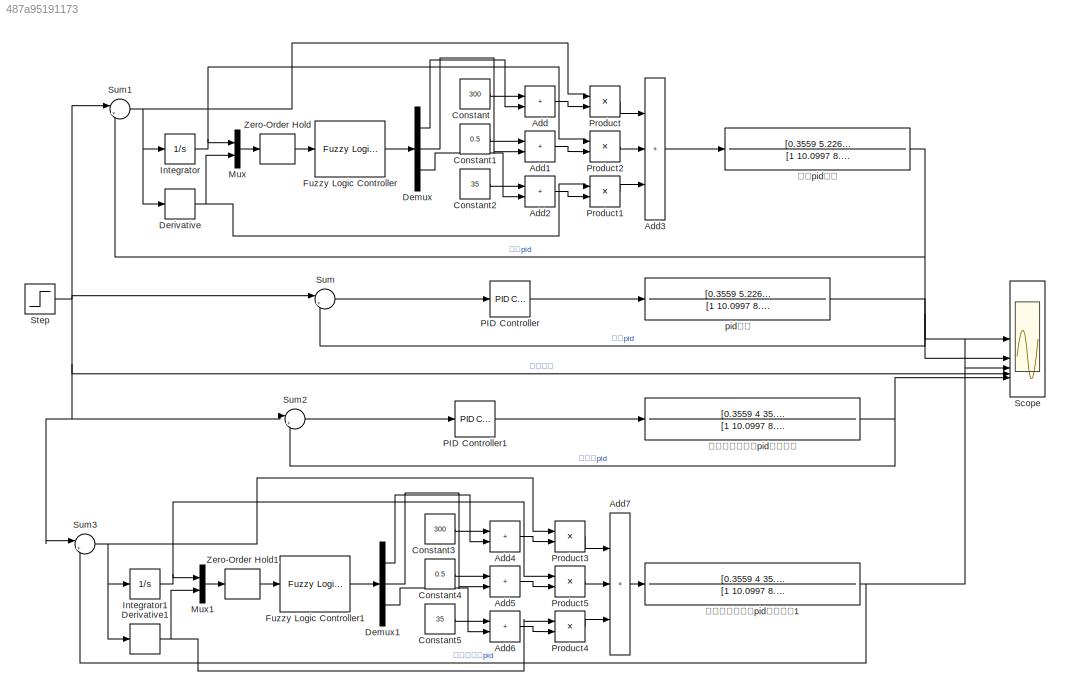
MODEL slx_487a95191173
KIND model
CONFIG AbsTol = auto
CONFIG EnableMultiTasking = off
CONFIG FixedStep = auto
CONFIG MaxStep = auto
CONFIG MinStep = auto
CONFIG RelTol = 1e-3
CONFIG SampleTimeConstraint = Unconstrained
CONFIG SolverName = VariableStepAuto
CONFIG StartTime = 0.0
CONFIG StopTime = 8
BLOCK [Sum] Add
  IconShape = rectangular
BLOCK [Sum] Add1
  IconShape = rectangular
BLOCK [Sum] Add2
  IconShape = rectangular
BLOCK [Sum] Add3
  IconShape = rectangular
  Inputs = +++
BLOCK [Sum] Add4
  IconShape = rectangular
BLOCK [Sum] Add5
  IconShape = rectangular
BLOCK [Sum] Add6
  IconShape = rectangular
BLOCK [Sum] Add7
  IconShape = rectangular
  Inputs = +++
BLOCK [Constant] Constant
  Value = 300
BLOCK [Constant] Constant1
  Value = 0.5
BLOCK [Constant] Constant2
  Value = 35
BLOCK [Constant] Constant3
  Value = 300
BLOCK [Constant] Constant4
  Value = 0.5
BLOCK [Constant] Constant5
  Value = 35
BLOCK [Demux] Demux
  Outputs = 3
BLOCK [Demux] Demux1
  Outputs = 3
BLOCK [Derivative] Derivative
BLOCK [Derivative] Derivative1
BLOCK [Reference] Fuzzy Logic Controller  REF=fuzblock/Fuzzy Logic   (lib defined in mdl_858b3b3e7478)
Controller
  SourceBlock = fuzblock/Fuzzy Logic \nController
  SourceType = Fuzzy Inference System
BLOCK [Reference] Fuzzy Logic Controller1  REF=fuzblock/Fuzzy Logic   (lib defined in mdl_858b3b3e7478)
Controller
  SourceBlock = fuzblock/Fuzzy Logic \nController
  SourceType = Fuzzy Inference System
BLOCK [Integrator] Integrator
BLOCK [Integrator] Integrator1
BLOCK [Mux] Mux
  DisplayOption = bar
  Inputs = 2
BLOCK [Mux] Mux1
  DisplayOption = bar
  Inputs = 2
BLOCK [Reference] PID Controller  REF=slpidlib/PID Controller
  LibrarySourceBlock = simulink/Continuous/PID Controller
  SourceBlock = slpidlib/PID Controller
  SourceType = PID 1dof
BLOCK [Reference] PID Controller1  REF=slpidlib/PID Controller
  LibrarySourceBlock = simulink/Continuous/PID Controller
  SourceBlock = slpidlib/PID Controller
  SourceType = PID 1dof
BLOCK [Product] Product
BLOCK [Product] Product1
BLOCK [Product] Product2
BLOCK [Product] Product3
BLOCK [Product] Product4
BLOCK [Product] Product5
BLOCK [Scope] Scope
  Floating = off
  NumInputPorts = 5
  ScopeSpecificationString = Simulink.scopes.TimeScopeBlockCfg('CurrentConfiguration', extmgr.ConfigurationSet(extmgr.Configuration('Core','General UI',true),extmgr.Configuration('Core','Source UI',true),extmgr.Configuration('Sources','WiredSimulink',true),extmgr.Configuration('Visuals','Time Domain',true,'SerializedDisplays',{struct('MinYLimReal','-0.20479','MaxYLimReal','1.84307','YLabelReal','','MinYLimMag','0.00000','MaxY...<+1489ch>
BLOCK [Step] Step
  SampleTime = 0
BLOCK [Sum] Sum
  Inputs = |+-
BLOCK [Sum] Sum1
  Inputs = |+-
BLOCK [Sum] Sum2
  Inputs = |+-
BLOCK [Sum] Sum3
  Inputs = |+-
BLOCK [ZeroOrderHold] Zero-Order Hold
  SampleTime = -1
BLOCK [ZeroOrderHold] Zero-Order Hold1
  SampleTime = -1
BLOCK [TransferFcn] pid控制
  Denominator = [1 10.0997 8.3879 0 0]
  Numerator = [0.3559 5.226 35.2459]
BLOCK [TransferFcn] 模糊pid控制
  Denominator = [1 10.0997 8.3879 0 0]
  Numerator = [0.3559 5.226 35.2459]
BLOCK [TransferFcn] 系统受到干扰后pid控制效果
  Denominator = [1 10.0997 8.3879 0 0]
  Numerator = [0.3559 4 35.2459]
BLOCK [TransferFcn] 系统受到干扰后pid控制效果1
  Denominator = [1 10.0997 8.3879 0 0]
  Numerator = [0.3559 4 35.2459]
LINE Add1:1 -> Product2:2
LINE Add2:1 -> Product1:2
LINE Add3:1 -> 模糊pid控制:1
LINE Add4:1 -> Product3:2
LINE Add5:1 -> Product5:2
LINE Add6:1 -> Product4:2
LINE Add7:1 -> 系统受到干扰后pid控制效果1:1
LINE Add:1 -> Product:2
LINE Constant1:1 -> Add1:1
LINE Constant2:1 -> Add2:1
LINE Constant3:1 -> Add4:1
LINE Constant4:1 -> Add5:1
LINE Constant5:1 -> Add6:1
LINE Constant:1 -> Add:1
LINE Demux1:1 -> Add4:2
LINE Demux1:2 -> Add5:2
LINE Demux1:3 -> Add6:2
LINE Demux:1 -> Add:2
LINE Demux:2 -> Add1:2
LINE Demux:3 -> Add2:2
NET Derivative1:1 -> Mux1:2, Product4:1
NET Derivative:1 -> Mux:2, Product1:1
LINE Fuzzy Logic Controller1:1 -> Demux1:1
LINE Fuzzy Logic Controller:1 -> Demux:1
NET Integrator1:1 -> Mux1:1, Product5:1
NET Integrator:1 -> Mux:1, Product2:1
LINE Mux1:1 -> Zero-Order Hold1:1
LINE Mux:1 -> Zero-Order Hold:1
LINE PID Controller1:1 -> 系统受到干扰后pid控制效果:1
LINE PID Controller:1 -> pid控制:1
LINE Product1:1 -> Add3:3
LINE Product2:1 -> Add3:2
LINE Product3:1 -> Add7:1
LINE Product4:1 -> Add7:3
LINE Product5:1 -> Add7:2
LINE Product:1 -> Add3:1
NET Step:1 -> Scope:4, Sum1:1, Sum2:1, Sum3:1, Sum:1
NET Sum1:1 -> Derivative:1, Integrator:1, Product:1
LINE Sum2:1 -> PID Controller1:1
NET Sum3:1 -> Derivative1:1, Integrator1:1, Product3:1
LINE Sum:1 -> PID Controller:1
LINE Zero-Order Hold1:1 -> Fuzzy Logic Controller1:1
LINE Zero-Order Hold:1 -> Fuzzy Logic Controller:1
NET pid控制:1 -> Scope:2, Sum:2
NET 模糊pid控制:1 -> Scope:1, Sum1:2
NET 系统受到干扰后pid控制效果1:1 -> Scope:3, Sum3:2
NET 系统受到干扰后pid控制效果:1 -> Scope:5, Sum2:2
note: NET lines group one-source signal fan-out (src -> all destinations, sorted); 1:1 wires keep LINE
